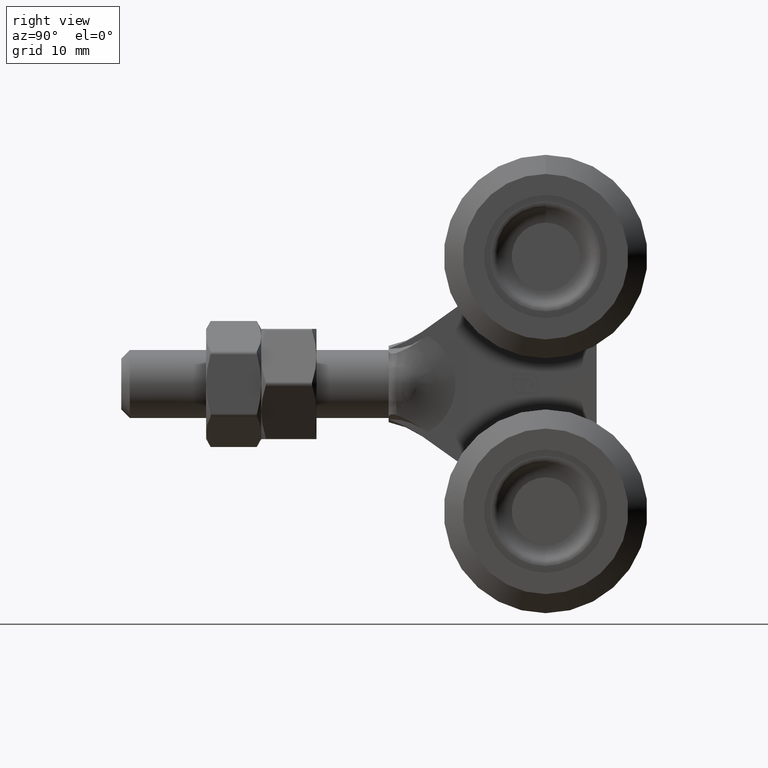
[diagram: clean part render]
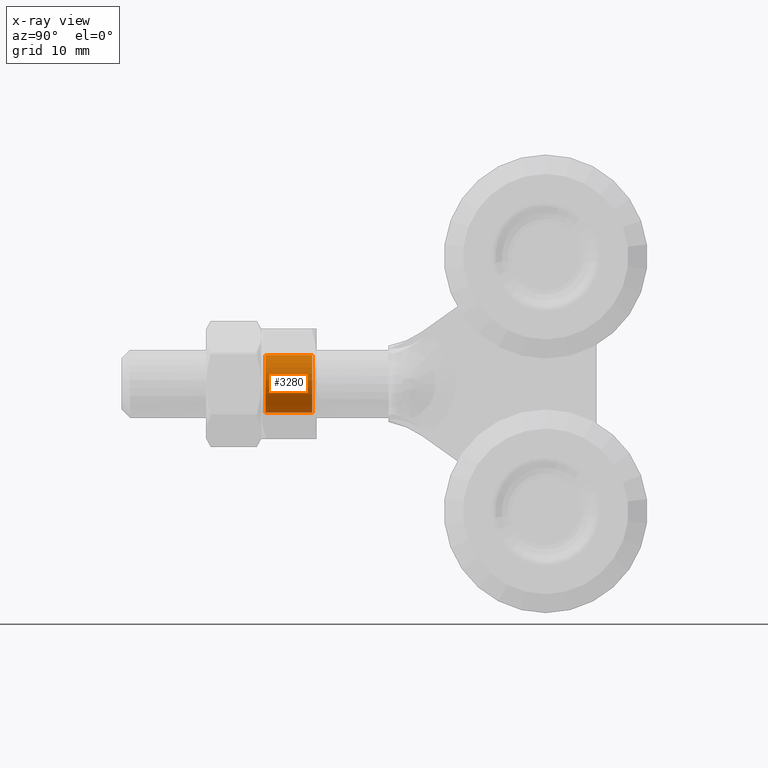
[diagram: x-ray — body ghosted, one internal face saturated and labeled with its STEP entity id]
A machine part, right view, then the same camera in x-ray: the body is ghosted and one INTERNAL B-rep face — a face not visible from any outside direction — is saturated and labeled: STEP entity #3280.
In plain terms, the highlighted cylindrical surface (bore or boss wall) has radius 3.4 mm, axis along (0, 1, 0).
Its self-contained STEP definition (entity closure, byte-faithful):
#502 = CARTESIAN_POINT ( 'NONE',  ( 0.000000000000000000, -2.749999999999995115, 0.000000000000000000 ) ) ;
#2657 = DIRECTION ( 'NONE',  ( -0.000000000000000000, 1.000000000000000000, -0.000000000000000000 ) ) ;
#3280 = ADVANCED_FACE ( 'NONE', ( #14079, #19052 ), #27479, .F. ) ;
#3885 = AXIS2_PLACEMENT_3D ( 'NONE', #23123, #14031, #20668 ) ;
#4767 = CARTESIAN_POINT ( 'NONE',  ( 0.000000000000000000, -2.749999999999995115, 3.399999999999998135 ) ) ;
#5172 = DIRECTION ( 'NONE',  ( -0.000000000000000000, -1.000000000000000000, -0.000000000000000000 ) ) ;
#5418 = EDGE_LOOP ( 'NONE', ( #5569 ) ) ;
#5569 = ORIENTED_EDGE ( 'NONE', *, *, #18649, .T. ) ;
#11635 = CARTESIAN_POINT ( 'NONE',  ( 0.000000000000000000, 2.749999999999995559, 3.399999999999998135 ) ) ;
#12134 = DIRECTION ( 'NONE',  ( 0.000000000000000000, 0.000000000000000000, 1.000000000000000000 ) ) ;
#14031 = DIRECTION ( 'NONE',  ( 0.000000000000000000, 1.000000000000000000, 0.000000000000000000 ) ) ;
#14079 = FACE_OUTER_BOUND ( 'NONE', #27102, .T. ) ;
#18649 = EDGE_CURVE ( 'NONE', #27874, #27874, #28911, .T. ) ;
#18724 = VERTEX_POINT ( 'NONE', #11635 ) ;
#19052 = FACE_OUTER_BOUND ( 'NONE', #5418, .T. ) ;
#19168 = CIRCLE ( 'NONE', #3885, 3.399999999999998135 ) ;
#20668 = DIRECTION ( 'NONE',  ( 0.000000000000000000, 0.000000000000000000, 1.000000000000000000 ) ) ;
#22619 = CARTESIAN_POINT ( 'NONE',  ( 0.000000000000000000, 3.250000000000000000, 0.000000000000000000 ) ) ;
#22806 = DIRECTION ( 'NONE',  ( 0.000000000000000000, 0.000000000000000000, 1.000000000000000000 ) ) ;
#22972 = ORIENTED_EDGE ( 'NONE', *, *, #27699, .T. ) ;
#23123 = CARTESIAN_POINT ( 'NONE',  ( 0.000000000000000000, 2.749999999999995559, 0.000000000000000000 ) ) ;
#23934 = AXIS2_PLACEMENT_3D ( 'NONE', #502, #5172, #12134 ) ;
#25932 = AXIS2_PLACEMENT_3D ( 'NONE', #22619, #2657, #22806 ) ;
#27102 = EDGE_LOOP ( 'NONE', ( #22972 ) ) ;
#27479 = CYLINDRICAL_SURFACE ( 'NONE', #25932, 3.399999999999998135 ) ;
#27699 = EDGE_CURVE ( 'NONE', #18724, #18724, #19168, .T. ) ;
#27874 = VERTEX_POINT ( 'NONE', #4767 ) ;
#28911 = CIRCLE ( 'NONE', #23934, 3.399999999999998135 ) ;